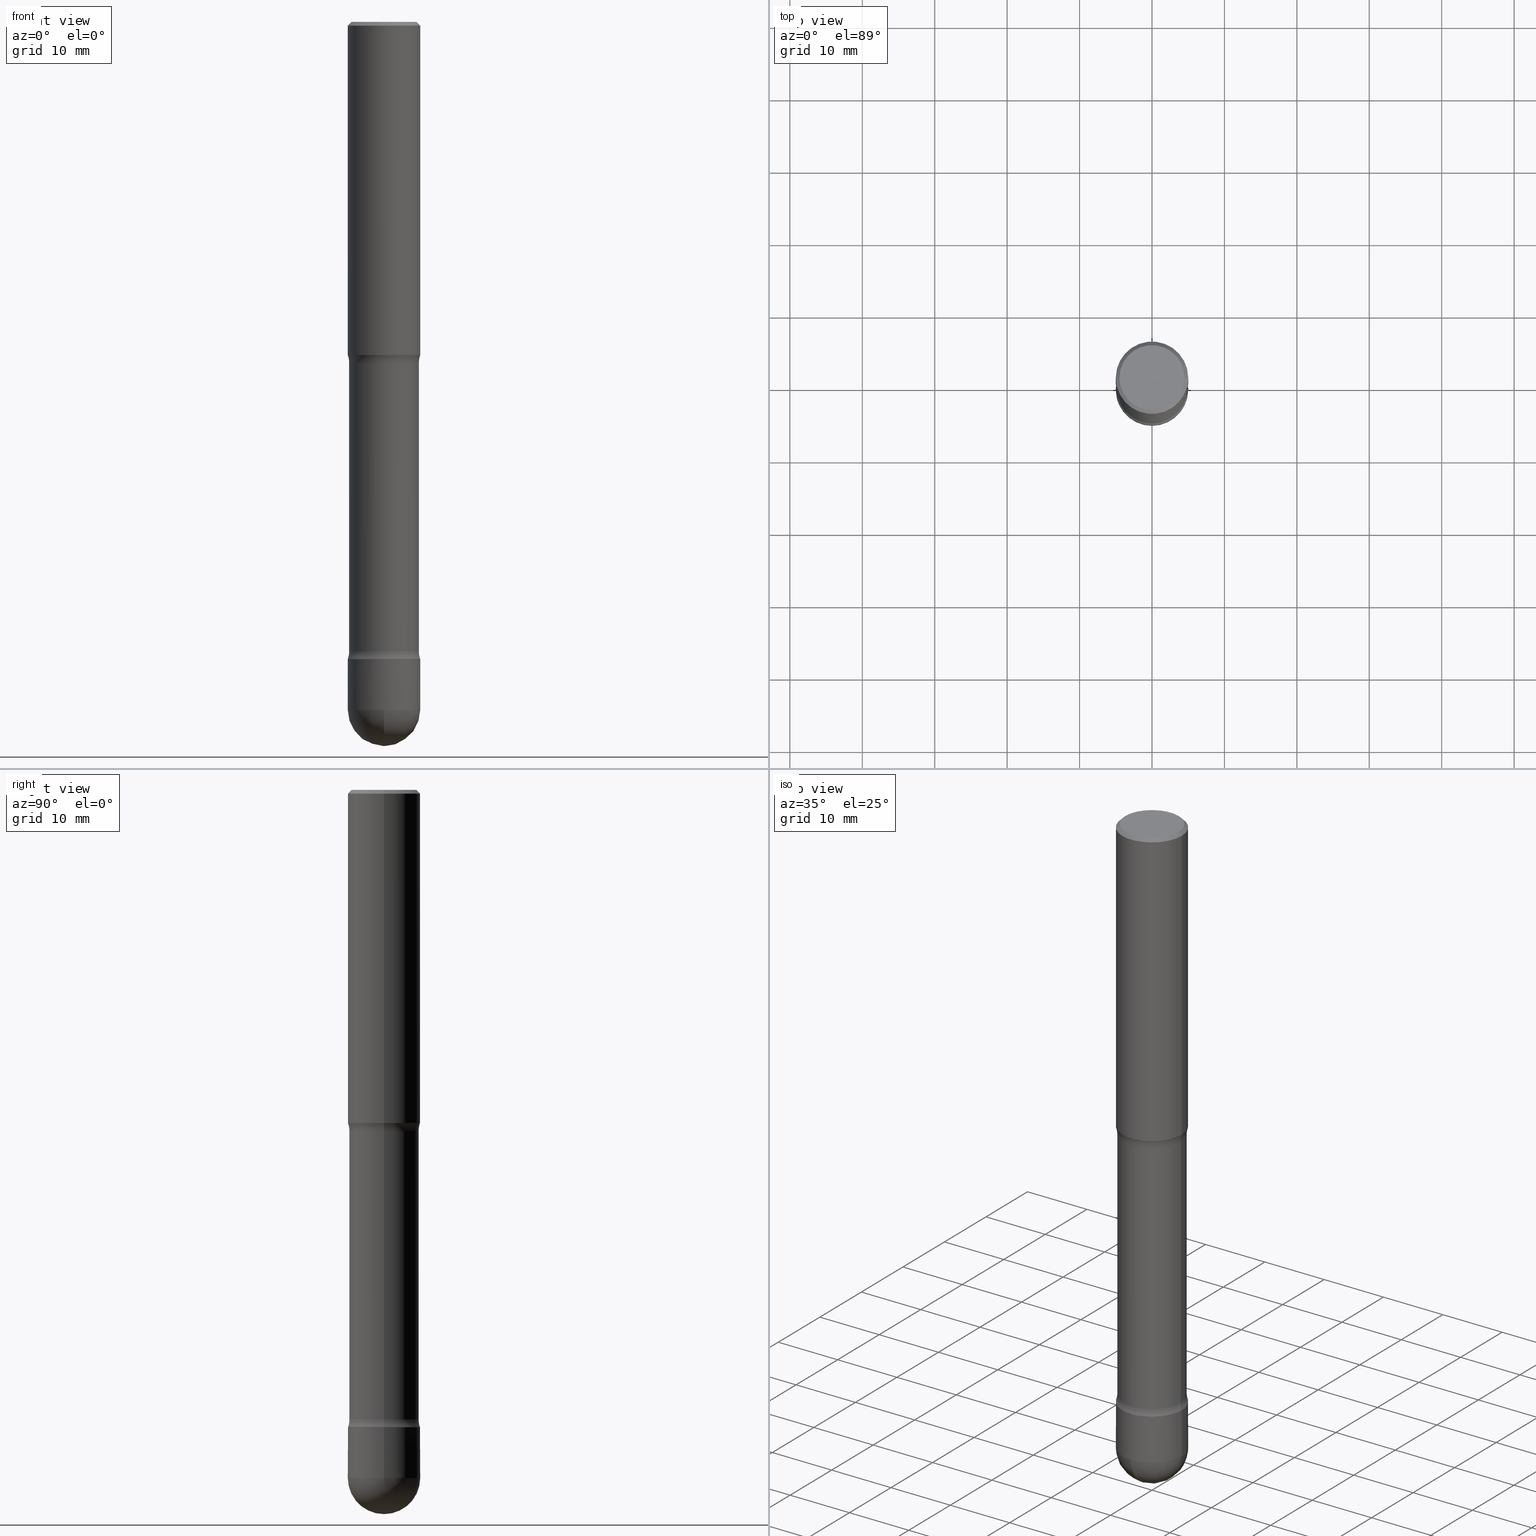
[diagram: canonical four-view strip — front | top / right | iso, engineering-drawing reading convention]
A machine part, canonical four-view strip (front | top / right | iso — engineering-drawing reading convention). The complete STEP part file that produces these views, byte-faithful:
ISO-10303-21;
HEADER;
FILE_DESCRIPTION (( 'STEP AP203' ),
    '1' );
FILE_NAME ('44617.STEP',
    '2024-02-29T19:25:43',
    ( '' ),
    ( '' ),
    'SwSTEP 2.0',
    'SolidWorks 2023',
    '' );
FILE_SCHEMA (( 'CONFIG_CONTROL_DESIGN' ));
ENDSEC;

DATA;
#1 = CARTESIAN_POINT ( 'NONE',  ( 8.368279793930263222E-29, -1.194768572178373665E-14, -3.421953194726923275 ) ) ;
#2 = ORIENTED_EDGE ( 'NONE', *, *, #269, .T. ) ;
#3 = DIRECTION ( 'NONE',  ( 2.445468806185136597E-29, -3.491481338843145583E-15, -1.000000000000000000 ) ) ;
#4 = DIRECTION ( 'NONE',  ( 2.445468806185136597E-29, -3.491481338843145583E-15, -1.000000000000000000 ) ) ;
#5 = ADVANCED_FACE ( 'NONE', ( #546 ), #18, .T. ) ;
#6 = ORIENTED_EDGE ( 'NONE', *, *, #314, .F. ) ;
#7 = LENGTH_MEASURE_WITH_UNIT ( LENGTH_MEASURE( 0.02539999999999999897 ), #405 );
#8 = EDGE_LOOP ( 'NONE', ( #445, #330, #348, #40, #441 ) ) ;
#9 =( NAMED_UNIT ( * ) SI_UNIT ( $, .STERADIAN. ) SOLID_ANGLE_UNIT ( ) );
#10 = VECTOR ( 'NONE', #544, 39.37007874015748143 ) ;
#11 = VECTOR ( 'NONE', #519, 39.37007874015748854 ) ;
#12 = ORIENTED_EDGE ( 'NONE', *, *, #517, .T. ) ;
#13 = VERTEX_POINT ( 'NONE', #506 ) ;
#14 = PLANE ( 'NONE',  #294 ) ;
#15 = DIRECTION ( 'NONE',  ( -2.445468806185136597E-29, 3.491481338843145583E-15, 1.000000000000000000 ) ) ;
#16 = DIRECTION ( 'NONE',  ( 2.445468806185136597E-29, -3.491481338843145583E-15, -1.000000000000000000 ) ) ;
#17 = EDGE_CURVE ( 'NONE', #237, #447, #449, .T. ) ;
#18 = CONICAL_SURFACE ( 'NONE', #94, 0.1968499999999997752, 0.7853981633974533860 ) ;
#19 = AXIS2_PLACEMENT_3D ( 'NONE', #179, #270, #514 ) ;
#20 = DIRECTION ( 'NONE',  ( -1.000000000000000000, 6.982962677686266711E-15, 0.000000000000000000 ) ) ;
#21 = DIRECTION ( 'NONE',  ( 2.445468806185136597E-29, -3.491481338843145583E-15, -1.000000000000000000 ) ) ;
#22 = ORIENTED_EDGE ( 'NONE', *, *, #127, .F. ) ;
#23 = DIRECTION ( 'NONE',  ( 2.445468806185136597E-29, -3.491481338843145583E-15, -1.000000000000000000 ) ) ;
#24 = FACE_OUTER_BOUND ( 'NONE', #121, .T. ) ;
#25 = CARTESIAN_POINT ( 'NONE',  ( 0.000000000000000000, 0.000000000000000000, 0.000000000000000000 ) ) ;
#26 = APPROVAL_ROLE ( '' ) ;
#27 = FACE_OUTER_BOUND ( 'NONE', #136, .T. ) ;
#28 = AXIS2_PLACEMENT_3D ( 'NONE', #509, #61, #413 ) ;
#29 = EDGE_CURVE ( 'NONE', #529, #204, #329, .T. ) ;
#30 = CARTESIAN_POINT ( 'NONE',  ( -0.1963499999999993584, -1.070143558489101000E-14, -3.464599999999999902 ) ) ;
#31 = LINE ( 'NONE', #30, #11 ) ;
#32 = DIRECTION ( 'NONE',  ( 2.445468806185136597E-29, -3.491481338843145583E-15, -1.000000000000000000 ) ) ;
#33 = ADVANCED_FACE ( 'NONE', ( #24 ), #14, .T. ) ;
#34 = AXIS2_PLACEMENT_3D ( 'NONE', #499, #252, #508 ) ;
#35 = EDGE_CURVE ( 'NONE', #561, #377, #142, .T. ) ;
#36 = LOCAL_TIME ( 14, 25, 43.00000000000000000, #530 ) ;
#37 = ORIENTED_EDGE ( 'NONE', *, *, #387, .F. ) ;
#38 = DIRECTION ( 'NONE',  ( -2.445468806185136597E-29, 3.491481338843145583E-15, 1.000000000000000000 ) ) ;
#39 = CARTESIAN_POINT ( 'NONE',  ( 1.398703375343844365E-15, 0.1968499999999863970, -3.740150000000000752 ) ) ;
#40 = ORIENTED_EDGE ( 'NONE', *, *, #517, .F. ) ;
#41 = APPROVAL ( #102, 'UNSPECIFIED' ) ;
#42 = APPROVAL_ROLE ( '' ) ;
#43 = EDGE_LOOP ( 'NONE', ( #89, #380, #282, #12, #79 ) ) ;
#44 = AXIS2_PLACEMENT_3D ( 'NONE', #297, #461, #512 ) ;
#45 = SECURITY_CLASSIFICATION ( '', '', #205 ) ;
#46 = CARTESIAN_POINT ( 'NONE',  ( 1.371104721763778671E-15, 0.1963499999999872847, -3.464600000000000346 ) ) ;
#47 = ORIENTED_EDGE ( 'NONE', *, *, #194, .T. ) ;
#48 = DATE_AND_TIME ( #140, #432 ) ;
#49 = FACE_OUTER_BOUND ( 'NONE', #357, .T. ) ;
#50 = ORIENTED_EDGE ( 'NONE', *, *, #267, .F. ) ;
#51 = PRODUCT ( '44617', '44617', '', ( #283 ) ) ;
#52 = APPLICATION_PROTOCOL_DEFINITION ( 'international standard', 'config_control_design', 1994, #63 ) ;
#53 = EDGE_LOOP ( 'NONE', ( #418, #368, #513, #522 ) ) ;
#54 = APPROVAL_DATE_TIME ( #448, #41 ) ;
#55 = CIRCLE ( 'NONE', #540, 0.1968499999999993033 ) ;
#56 = CIRCLE ( 'NONE', #399, 0.1968499999999995809 ) ;
#57 = CYLINDRICAL_SURFACE ( 'NONE', #425, 0.1893499999999998795 ) ;
#58 = DIRECTION ( 'NONE',  ( -1.000000000000000000, 6.982962677686263555E-15, 0.000000000000000000 ) ) ;
#59 = EDGE_CURVE ( 'NONE', #352, #373, #55, .T. ) ;
#60 = PERSON_AND_ORGANIZATION_ROLE ( 'creator' ) ;
#61 = DIRECTION ( 'NONE',  ( 2.445468806185136597E-29, -3.491481338843145583E-15, -1.000000000000000000 ) ) ;
#62 = FACE_OUTER_BOUND ( 'NONE', #130, .T. ) ;
#63 = APPLICATION_CONTEXT ( 'configuration controlled 3d designs of mechanical parts and assemblies' ) ;
#64 = CIRCLE ( 'NONE', #218, 0.1768499999999997851 ) ;
#65 = CARTESIAN_POINT ( 'NONE',  ( 4.533035439980052208E-29, -6.471973229417174909E-15, -1.853646805273080567 ) ) ;
#66 = EDGE_CURVE ( 'NONE', #561, #396, #452, .T. ) ;
#67 = CIRCLE ( 'NONE', #391, 0.1968499999999999417 ) ;
#68 = DIRECTION ( 'NONE',  ( -1.000000000000000000, 6.982962677686267499E-15, 0.000000000000000000 ) ) ;
#69 = COORDINATED_UNIVERSAL_TIME_OFFSET ( 5, 0, .BEHIND. ) ;
#70 = DIRECTION ( 'NONE',  ( -1.000000000000000000, 6.982962677686265922E-15, -4.876176775795935793E-29 ) ) ;
#71 = DIRECTION ( 'NONE',  ( -2.438088387897960049E-29, 3.491481338843145188E-15, 1.000000000000000000 ) ) ;
#72 = CARTESIAN_POINT ( 'NONE',  ( 8.472571225909024784E-29, -1.209658624655596216E-14, -3.464599999999999902 ) ) ;
#73 = DIRECTION ( 'NONE',  ( 1.000000000000000000, -6.982962677686263555E-15, 0.000000000000000000 ) ) ;
#74 = ORIENTED_EDGE ( 'NONE', *, *, #421, .T. ) ;
#75 = ADVANCED_FACE ( 'NONE', ( #62 ), #326, .T. ) ;
#76 = CARTESIAN_POINT ( 'NONE',  ( 0.3143499999999866401, -1.410428326738312424E-14, -3.421953194726923275 ) ) ;
#77 = AXIS2_PLACEMENT_3D ( 'NONE', #424, #255, #159 ) ;
#78 = AXIS2_PLACEMENT_3D ( 'NONE', #555, #88, #264 ) ;
#79 = ORIENTED_EDGE ( 'NONE', *, *, #492, .F. ) ;
#80 = CARTESIAN_POINT ( 'NONE',  ( 8.472571225909024784E-29, -1.209658624655596216E-14, -3.464599999999999902 ) ) ;
#81 = CARTESIAN_POINT ( 'NONE',  ( 4.533035439980052208E-29, -6.471973229417174909E-15, -1.853646805273080567 ) ) ;
#82 = DIRECTION ( 'NONE',  ( 2.445468806185136597E-29, -3.491481338843145583E-15, -1.000000000000000000 ) ) ;
#83 = APPLICATION_CONTEXT ( 'configuration controlled 3d designs of mechanical parts and assemblies' ) ;
#84 = CIRCLE ( 'NONE', #389, 0.1893499999999997130 ) ;
#85 = DIRECTION ( 'NONE',  ( 1.000000000000000000, -6.982962677686273810E-15, 0.000000000000000000 ) ) ;
#86 = EDGE_CURVE ( 'NONE', #381, #384, #211, .T. ) ;
#87 = ORIENTED_EDGE ( 'NONE', *, *, #17, .T. ) ;
#88 = DIRECTION ( 'NONE',  ( -2.445468806185136597E-29, 3.491481338843145583E-15, 1.000000000000000000 ) ) ;
#89 = ORIENTED_EDGE ( 'NONE', *, *, #66, .F. ) ;
#90 = ADVANCED_FACE ( 'NONE', ( #415 ), #57, .T. ) ;
#91 = APPROVAL_ROLE ( '' ) ;
#92 = PLANE ( 'NONE',  #565 ) ;
#93 = EDGE_LOOP ( 'NONE', ( #222, #437, #240, #478 ) ) ;
#94 = AXIS2_PLACEMENT_3D ( 'NONE', #111, #154, #20 ) ;
#95 = VECTOR ( 'NONE', #99, 39.37007874015748143 ) ;
#96 = CARTESIAN_POINT ( 'NONE',  ( 0.1968499999999999417, -4.546940196572229414E-15, -1.811000000000002830 ) ) ;
#97 = DIRECTION ( 'NONE',  ( 2.438088387897960049E-29, -3.491481338843145188E-15, -1.000000000000000000 ) ) ;
#98 = ORIENTED_EDGE ( 'NONE', *, *, #86, .T. ) ;
#99 = DIRECTION ( 'NONE',  ( -2.445468806185136877E-29, 3.491481338843145188E-15, 1.000000000000000000 ) ) ;
#100 = ADVANCED_FACE ( 'NONE', ( #318 ), #92, .T. ) ;
#101 = ORIENTED_EDGE ( 'NONE', *, *, #291, .F. ) ;
#102 = APPROVAL_STATUS ( 'not_yet_approved' ) ;
#103 = DIRECTION ( 'NONE',  ( 0.000000000000000000, 0.000000000000000000, 1.000000000000000000 ) ) ;
#104 = CIRCLE ( 'NONE', #151, 0.1968499999999997752 ) ;
#105 = AXIS2_PLACEMENT_3D ( 'NONE', #310, #468, #395 ) ;
#106 = ADVANCED_FACE ( 'NONE', ( #49 ), #132, .F. ) ;
#107 = CARTESIAN_POINT ( 'NONE',  ( -0.1968499999999998307, -1.072199004345342213E-14, -3.464599999999999902 ) ) ;
#108 = EDGE_LOOP ( 'NONE', ( #191, #37, #388, #220 ) ) ;
#109 = PERSON_AND_ORGANIZATION ( #323, #450 ) ;
#110 = CARTESIAN_POINT ( 'NONE',  ( 0.000000000000000000, 0.000000000000000000, 0.000000000000000000 ) ) ;
#111 = CARTESIAN_POINT ( 'NONE',  ( 4.890937612370220610E-31, -6.982962677686216421E-17, -0.01999999999999978531 ) ) ;
#112 = ORIENTED_EDGE ( 'NONE', *, *, #229, .T. ) ;
#113 = CARTESIAN_POINT ( 'NONE',  ( 8.368279793930256495E-29, -1.194768572178372876E-14, -3.421953194726920611 ) ) ;
#114 = CARTESIAN_POINT ( 'NONE',  ( 0.1968499999999997752, -1.420318657638186558E-15, -0.01999999999999978531 ) ) ;
#115 = CARTESIAN_POINT ( 'NONE',  ( 9.146420155453339430E-29, -1.305866392947419182E-14, -3.740150000000000308 ) ) ;
#116 = EDGE_LOOP ( 'NONE', ( #6, #226, #465, #542 ) ) ;
#117 = AXIS2_PLACEMENT_3D ( 'NONE', #245, #493, #157 ) ;
#118 = DIRECTION ( 'NONE',  ( 7.105427357600999492E-15, 1.000000000000000000, 0.000000000000000000 ) ) ;
#119 = VECTOR ( 'NONE', #181, 39.37007874015748854 ) ;
#120 = CARTESIAN_POINT ( 'NONE',  ( 8.472571225909024784E-29, -1.209658624655596216E-14, -3.464599999999999902 ) ) ;
#121 = EDGE_LOOP ( 'NONE', ( #374, #498 ) ) ;
#122 = CARTESIAN_POINT ( 'NONE',  ( 0.1968499999999998307, -1.344707527741728837E-14, -3.464599999999999902 ) ) ;
#123 = EDGE_LOOP ( 'NONE', ( #242, #460, #558, #436 ) ) ;
#124 = SPHERICAL_SURFACE ( 'NONE', #566, 0.1968499999999995809 ) ;
#125 = CIRCLE ( 'NONE', #439, 0.1968499999999999417 ) ;
#126 = CIRCLE ( 'NONE', #248, 0.1968499999999993588 ) ;
#127 = EDGE_CURVE ( 'NONE', #526, #510, #491, .T. ) ;
#128 = FACE_OUTER_BOUND ( 'NONE', #167, .T. ) ;
#129 = LINE ( 'NONE', #172, #119 ) ;
#130 = EDGE_LOOP ( 'NONE', ( #214, #287, #484, #364 ) ) ;
#131 = CARTESIAN_POINT ( 'NONE',  ( 8.368279793930263222E-29, -1.194768572178373665E-14, -3.421953194726923275 ) ) ;
#132 = TOROIDAL_SURFACE ( 'NONE', #303, 0.3143499999999866401, 0.1249999999999867467 ) ;
#133 = CIRCLE ( 'NONE', #559, 0.1249999999999867467 ) ;
#134 = ORIENTED_EDGE ( 'NONE', *, *, #17, .F. ) ;
#135 = DIRECTION ( 'NONE',  ( -6.982962677686266711E-15, -1.000000000000000000, 0.000000000000000000 ) ) ;
#136 = EDGE_LOOP ( 'NONE', ( #47, #507 ) ) ;
#137 = COORDINATED_UNIVERSAL_TIME_OFFSET ( 5, 0, .BEHIND. ) ;
#138 = DIRECTION ( 'NONE',  ( -1.000000000000000000, 6.982962677686266711E-15, 0.000000000000000000 ) ) ;
#139 = ORIENTED_EDGE ( 'NONE', *, *, #262, .F. ) ;
#140 = CALENDAR_DATE ( 2024, 29, 2 ) ;
#141 = CARTESIAN_POINT ( 'NONE',  ( 4.890937612370220610E-31, -6.982962677686216421E-17, -0.01999999999999978531 ) ) ;
#142 = CIRCLE ( 'NONE', #311, 0.1968499999999993033 ) ;
#143 = ADVANCED_FACE ( 'NONE', ( #275 ), #336, .T. ) ;
#144 = FACE_OUTER_BOUND ( 'NONE', #43, .T. ) ;
#145 = EDGE_CURVE ( 'NONE', #515, #381, #186, .T. ) ;
#146 = ORIENTED_EDGE ( 'NONE', *, *, #35, .F. ) ;
#147 = CARTESIAN_POINT ( 'NONE',  ( 0.000000000000000000, 0.000000000000000000, 0.000000000000000000 ) ) ;
#148 = CARTESIAN_POINT ( 'NONE',  ( -0.1968499999999993033, -1.117892171267132551E-14, -3.740150000000000308 ) ) ;
#149 = VERTEX_POINT ( 'NONE', #232 ) ;
#150 = DIRECTION ( 'NONE',  ( 1.000000000000000000, -6.982962677686268288E-15, 0.000000000000000000 ) ) ;
#151 = AXIS2_PLACEMENT_3D ( 'NONE', #286, #503, #200 ) ;
#152 = DIRECTION ( 'NONE',  ( -2.445468806185136597E-29, 3.491481338843145583E-15, 1.000000000000000000 ) ) ;
#153 = ADVANCED_FACE ( 'NONE', ( #315 ), #185, .T. ) ;
#154 = DIRECTION ( 'NONE',  ( 2.445468806185136597E-29, -3.491481338843145583E-15, -1.000000000000000000 ) ) ;
#155 = DATE_AND_TIME ( #365, #238 ) ;
#156 = FACE_OUTER_BOUND ( 'NONE', #108, .T. ) ;
#157 = DIRECTION ( 'NONE',  ( -6.982962677686266711E-15, -1.000000000000000000, 2.775563112689123006E-15 ) ) ;
#158 = DIRECTION ( 'NONE',  ( 6.860497997771531562E-15, 1.000000000000000000, -3.491481338843145583E-15 ) ) ;
#159 = DIRECTION ( 'NONE',  ( -1.000000000000000000, 6.982962677686269866E-15, 0.000000000000000000 ) ) ;
#160 = APPROVAL ( #477, 'UNSPECIFIED' ) ;
#161 = DATE_AND_TIME ( #412, #312 ) ;
#162 = MANIFOLD_SOLID_BREP ( 'Body-Move/Copy2[2]', #259 ) ;
#163 = VECTOR ( 'NONE', #379, 39.37007874015748143 ) ;
#164 = EDGE_CURVE ( 'NONE', #13, #204, #190, .T. ) ;
#165 = DIRECTION ( 'NONE',  ( 2.445468806185136597E-29, -3.491481338843145583E-15, -1.000000000000000000 ) ) ;
#166 = AXIS2_PLACEMENT_3D ( 'NONE', #189, #488, #403 ) ;
#167 = EDGE_LOOP ( 'NONE', ( #50, #112, #316, #251 ) ) ;
#168 = ORIENTED_EDGE ( 'NONE', *, *, #339, .F. ) ;
#169 = PERSON_AND_ORGANIZATION ( #323, #450 ) ;
#170 = CARTESIAN_POINT ( 'NONE',  ( 4.533035439980052208E-29, -6.471973229417174909E-15, -1.853646805273080567 ) ) ;
#171 = VERTEX_POINT ( 'NONE', #537 ) ;
#172 = CARTESIAN_POINT ( 'NONE',  ( 0.1963499999999993584, -1.346769096831965602E-14, -3.464599999999999902 ) ) ;
#173 = CC_DESIGN_PERSON_AND_ORGANIZATION_ASSIGNMENT ( #442, #274, ( #51 ) ) ;
#174 = ORIENTED_EDGE ( 'NONE', *, *, #387, .T. ) ;
#175 = CARTESIAN_POINT ( 'NONE',  ( -1.374596203102446353E-15, -0.1968500000000124872, -3.740149999999999864 ) ) ;
#176 = AXIS2_PLACEMENT_3D ( 'NONE', #170, #371, #454 ) ;
#177 = AXIS2_PLACEMENT_3D ( 'NONE', #345, #429, #435 ) ;
#178 = EDGE_CURVE ( 'NONE', #529, #384, #284, .T. ) ;
#179 = CARTESIAN_POINT ( 'NONE',  ( 8.472571225909024784E-29, -1.209658624655596216E-14, -3.464599999999999902 ) ) ;
#180 = CYLINDRICAL_SURFACE ( 'NONE', #327, 0.1968499999999998307 ) ;
#181 = DIRECTION ( 'NONE',  ( 0.7071067811865145991, -2.468850131081912723E-15, 0.7071067811865802133 ) ) ;
#182 = EDGE_CURVE ( 'NONE', #204, #13, #84, .T. ) ;
#183 = ORIENTED_EDGE ( 'NONE', *, *, #182, .T. ) ;
#184 = CARTESIAN_POINT ( 'NONE',  ( 0.1968499999999993588, -1.347118244965850061E-14, -3.464599999999999902 ) ) ;
#185 = CYLINDRICAL_SURFACE ( 'NONE', #523, 0.1968499999999993311 ) ;
#186 = LINE ( 'NONE', #483, #367 ) ;
#187 = EDGE_CURVE ( 'NONE', #321, #381, #104, .T. ) ;
#188 = EDGE_CURVE ( 'NONE', #149, #373, #504, .T. ) ;
#189 = CARTESIAN_POINT ( 'NONE',  ( 0.000000000000000000, 0.000000000000000000, 0.000000000000000000 ) ) ;
#190 = CIRCLE ( 'NONE', #34, 0.1893499999999997130 ) ;
#191 = ORIENTED_EDGE ( 'NONE', *, *, #443, .F. ) ;
#192 = AXIS2_PLACEMENT_3D ( 'NONE', #215, #38, #431 ) ;
#193 = EDGE_LOOP ( 'NONE', ( #101, #2, #341, #475 ) ) ;
#194 = EDGE_CURVE ( 'NONE', #520, #396, #467, .T. ) ;
#195 = DIRECTION ( 'NONE',  ( -1.000000000000000000, 6.982962677686266711E-15, -4.876176775795935793E-29 ) ) ;
#196 = ADVANCED_FACE ( 'NONE', ( #27 ), #456, .F. ) ;
#197 = DIRECTION ( 'NONE',  ( 2.445468806185136597E-29, -3.491481338843145583E-15, -1.000000000000000000 ) ) ;
#198 = CLOSED_SHELL ( 'NONE', ( #153, #75, #466, #554, #196 ) ) ;
#199 = CONICAL_SURFACE ( 'NONE', #440, 0.1963499999999993584, 0.7853981633974018717 ) ;
#200 = DIRECTION ( 'NONE',  ( -1.000000000000000000, 6.982962677686266711E-15, 0.000000000000000000 ) ) ;
#201 = EDGE_LOOP ( 'NONE', ( #230, #385, #98, #271 ) ) ;
#202 = DIRECTION ( 'NONE',  ( 2.445468806185136597E-29, -3.491481338843145583E-15, -1.000000000000000000 ) ) ;
#203 = PRODUCT_RELATED_PRODUCT_CATEGORY ( 'detail', '', ( #51 ) ) ;
#204 = VERTEX_POINT ( 'NONE', #383 ) ;
#205 = SECURITY_CLASSIFICATION_LEVEL ( 'unclassified' ) ;
#206 = CARTESIAN_POINT ( 'NONE',  ( -0.1967173271255958644, -1.072163397737945290E-14, -3.464232672874403285 ) ) ;
#207 = DIRECTION ( 'NONE',  ( 1.000000000000000000, -6.982962677686265922E-15, 4.876176775795935793E-29 ) ) ;
#208 = AXIS2_PLACEMENT_3D ( 'NONE', #141, #4, #138 ) ;
#209 = DIRECTION ( 'NONE',  ( -1.000000000000000000, 6.982962677686266711E-15, 0.000000000000000000 ) ) ;
#210 = CC_DESIGN_APPROVAL ( #451, ( #45 ) ) ;
#211 = LINE ( 'NONE', #107, #398 ) ;
#212 = CC_DESIGN_DATE_AND_TIME_ASSIGNMENT ( #48, #490, ( #307 ) ) ;
#213 = FACE_OUTER_BOUND ( 'NONE', #402, .T. ) ;
#214 = ORIENTED_EDGE ( 'NONE', *, *, #421, .F. ) ;
#215 = CARTESIAN_POINT ( 'NONE',  ( 8.472571225909024784E-29, -1.209658624655596216E-14, -3.464599999999999902 ) ) ;
#216 = EDGE_LOOP ( 'NONE', ( #369, #168, #335, #434 ) ) ;
#217 = CARTESIAN_POINT ( 'NONE',  ( 9.129586207050842305E-29, -1.308277110171540879E-14, -3.740150000000000308 ) ) ;
#218 = AXIS2_PLACEMENT_3D ( 'NONE', #110, #16, #195 ) ;
#219 = AXIS2_PLACEMENT_3D ( 'NONE', #147, #103, #322 ) ;
#220 = ORIENTED_EDGE ( 'NONE', *, *, #291, .T. ) ;
#221 = DIRECTION ( 'NONE',  ( -1.000000000000000000, 6.982962677686266711E-15, -4.883557194083112901E-29 ) ) ;
#222 = ORIENTED_EDGE ( 'NONE', *, *, #339, .T. ) ;
#223 = PERSON_AND_ORGANIZATION_ROLE ( 'creator' ) ;
#224 = DIRECTION ( 'NONE',  ( -1.000000000000000000, 6.982962677686264344E-15, 0.000000000000000000 ) ) ;
#225 =( GEOMETRIC_REPRESENTATION_CONTEXT ( 3 ) GLOBAL_UNCERTAINTY_ASSIGNED_CONTEXT ( ( #359 ) ) GLOBAL_UNIT_ASSIGNED_CONTEXT ( ( #438, #320, #9 ) ) REPRESENTATION_CONTEXT ( 'NONE', 'WORKASPACE' ) );
#226 = ORIENTED_EDGE ( 'NONE', *, *, #279, .T. ) ;
#227 = CARTESIAN_POINT ( 'NONE',  ( -0.1893500000000000461, -5.149749246397279985E-15, -1.853646805273080567 ) ) ;
#228 = ADVANCED_FACE ( 'NONE', ( #254 ), #406, .F. ) ;
#229 = EDGE_CURVE ( 'NONE', #302, #529, #414, .T. ) ;
#230 = ORIENTED_EDGE ( 'NONE', *, *, #258, .F. ) ;
#231 = CALENDAR_DATE ( 2024, 29, 2 ) ;
#232 = CARTESIAN_POINT ( 'NONE',  ( 9.602559767347136862E-29, -1.378212278938728887E-14, -3.937000000000000277 ) ) ;
#233 = ORIENTED_EDGE ( 'NONE', *, *, #269, .F. ) ;
#234 = PERSON_AND_ORGANIZATION ( #323, #450 ) ;
#235 = EDGE_CURVE ( 'NONE', #381, #321, #266, .T. ) ;
#236 = AXIS2_PLACEMENT_3D ( 'NONE', #366, #165, #340 ) ;
#237 = VERTEX_POINT ( 'NONE', #206 ) ;
#238 = LOCAL_TIME ( 14, 25, 43.00000000000000000, #453 ) ;
#239 = DIRECTION ( 'NONE',  ( -1.000000000000000000, 6.982962677686265922E-15, 0.000000000000000000 ) ) ;
#240 = ORIENTED_EDGE ( 'NONE', *, *, #182, .F. ) ;
#241 = DATE_TIME_ROLE ( 'classification_date' ) ;
#242 = ORIENTED_EDGE ( 'NONE', *, *, #229, .F. ) ;
#243 = PERSON_AND_ORGANIZATION_ROLE ( 'design_supplier' ) ;
#244 = DIRECTION ( 'NONE',  ( 1.000000000000000000, -7.105427357601001070E-15, 4.926315508542082329E-29 ) ) ;
#245 = CARTESIAN_POINT ( 'NONE',  ( 9.129586207050842305E-29, -1.308277110171540879E-14, -3.740150000000000308 ) ) ;
#246 = DIRECTION ( 'NONE',  ( -6.982962677686266711E-15, -1.000000000000000000, 3.491481338843145583E-15 ) ) ;
#247 = AXIS2_PLACEMENT_3D ( 'NONE', #496, #152, #301 ) ;
#248 = AXIS2_PLACEMENT_3D ( 'NONE', #80, #470, #353 ) ;
#249 = DIRECTION ( 'NONE',  ( -1.000000000000000000, 6.982962677686265922E-15, 0.000000000000000000 ) ) ;
#250 = EDGE_CURVE ( 'NONE', #547, #384, #125, .T. ) ;
#251 = ORIENTED_EDGE ( 'NONE', *, *, #164, .F. ) ;
#252 = DIRECTION ( 'NONE',  ( 2.445468806185136597E-29, -3.491481338843145583E-15, -1.000000000000000000 ) ) ;
#253 = SHAPE_DEFINITION_REPRESENTATION ( #394, #295 ) ;
#254 = FACE_OUTER_BOUND ( 'NONE', #216, .T. ) ;
#255 = DIRECTION ( 'NONE',  ( 2.445468806185136597E-29, -3.491481338843145583E-15, -1.000000000000000000 ) ) ;
#256 = DIRECTION ( 'NONE',  ( -1.000000000000000000, 6.982962677686266711E-15, -4.883557194083112901E-29 ) ) ;
#257 = CARTESIAN_POINT ( 'NONE',  ( 9.146420155453339430E-29, -1.305866392947419182E-14, -3.740150000000000308 ) ) ;
#258 = EDGE_CURVE ( 'NONE', #321, #547, #539, .T. ) ;
#259 = CLOSED_SHELL ( 'NONE', ( #462, #363, #90, #349, #393, #143, #5, #404, #228, #469, #106, #299, #100, #33 ) ) ;
#260 = DIRECTION ( 'NONE',  ( 6.860497997771531562E-15, 1.000000000000000000, -3.491481338843145583E-15 ) ) ;
#261 = CIRCLE ( 'NONE', #78, 0.1968499999999993033 ) ;
#262 = EDGE_CURVE ( 'NONE', #373, #561, #516, .T. ) ;
#263 = DIRECTION ( 'NONE',  ( -6.982962677686266711E-15, -1.000000000000000000, 2.775563112689123006E-15 ) ) ;
#264 = DIRECTION ( 'NONE',  ( 1.000000000000000000, -6.982962677686263555E-15, 0.000000000000000000 ) ) ;
#265 = CARTESIAN_POINT ( 'NONE',  ( -0.3143499999999866401, -9.752591404053151476E-15, -3.421953194726923275 ) ) ;
#266 = CIRCLE ( 'NONE', #481, 0.1968499999999997752 ) ;
#267 = EDGE_CURVE ( 'NONE', #302, #13, #543, .T. ) ;
#268 = TOROIDAL_SURFACE ( 'NONE', #356, 0.3143499999999866401, 0.1249999999999867467 ) ;
#269 = EDGE_CURVE ( 'NONE', #447, #13, #557, .T. ) ;
#270 = DIRECTION ( 'NONE',  ( 2.445468806185136597E-29, -3.491481338843145583E-15, -1.000000000000000000 ) ) ;
#271 = ORIENTED_EDGE ( 'NONE', *, *, #250, .F. ) ;
#272 = DIRECTION ( 'NONE',  ( -1.000000000000000000, 6.982962677686264344E-15, 0.000000000000000000 ) ) ;
#273 = ORIENTED_EDGE ( 'NONE', *, *, #382, .F. ) ;
#274 = PERSON_AND_ORGANIZATION_ROLE ( 'design_owner' ) ;
#275 = FACE_OUTER_BOUND ( 'NONE', #532, .T. ) ;
#276 = AXIS2_PLACEMENT_3D ( 'NONE', #289, #244, #118 ) ;
#277 = CIRCLE ( 'NONE', #482, 0.1249999999999882871 ) ;
#278 = ORIENTED_EDGE ( 'NONE', *, *, #145, .F. ) ;
#279 = EDGE_CURVE ( 'NONE', #171, #515, #64, .T. ) ;
#280 = DIRECTION ( 'NONE',  ( -1.000000000000000000, 6.982962677686265922E-15, -4.876176775795935793E-29 ) ) ;
#281 = CARTESIAN_POINT ( 'NONE',  ( 4.428744008001289525E-29, -6.323072704644947039E-15, -1.811000000000002830 ) ) ;
#282 = ORIENTED_EDGE ( 'NONE', *, *, #372, .T. ) ;
#283 = MECHANICAL_CONTEXT ( 'NONE', #63, 'mechanical' ) ;
#284 = CIRCLE ( 'NONE', #325, 0.1249999999999882871 ) ;
#285 = EDGE_CURVE ( 'NONE', #515, #171, #361, .T. ) ;
#286 = CARTESIAN_POINT ( 'NONE',  ( 4.890937612370220610E-31, -6.982962677686216421E-17, -0.01999999999999978531 ) ) ;
#287 = ORIENTED_EDGE ( 'NONE', *, *, #188, .T. ) ;
#288 = DATE_AND_TIME ( #422, #370 ) ;
#289 = CARTESIAN_POINT ( 'NONE',  ( 9.129586207050842305E-29, -1.308277110171540879E-14, -3.740150000000000308 ) ) ;
#290 = DIRECTION ( 'NONE',  ( 1.000000000000000000, -6.982962677686263555E-15, 0.000000000000000000 ) ) ;
#291 = EDGE_CURVE ( 'NONE', #447, #237, #505, .T. ) ;
#292 = CARTESIAN_POINT ( 'NONE',  ( 4.533035439980052208E-29, -6.471973229417174909E-15, -1.853646805273080567 ) ) ;
#293 = DIRECTION ( 'NONE',  ( 2.445468806185136877E-29, -3.491481338843145188E-15, -1.000000000000000000 ) ) ;
#294 = AXIS2_PLACEMENT_3D ( 'NONE', #300, #71, #207 ) ;
#295 = ADVANCED_BREP_SHAPE_REPRESENTATION ( '44617', ( #351, #162, #219 ), #225 ) ;
#296 = APPROVAL_PERSON_ORGANIZATION ( #234, #41, #42 ) ;
#297 = CARTESIAN_POINT ( 'NONE',  ( 8.472571225909024784E-29, -1.209658624655596216E-14, -3.464599999999999902 ) ) ;
#298 = DIRECTION ( 'NONE',  ( 0.7071067811865511255, -7.319954787623268667E-15, -0.7071067811865439090 ) ) ;
#299 = ADVANCED_FACE ( 'NONE', ( #156 ), #199, .T. ) ;
#300 = CARTESIAN_POINT ( 'NONE',  ( 1.234936949548814617E-15, 0.1768499999999997851, -6.153342185293593634E-16 ) ) ;
#301 = DIRECTION ( 'NONE',  ( 1.000000000000000000, -6.982962677686263555E-15, 0.000000000000000000 ) ) ;
#302 = VERTEX_POINT ( 'NONE', #500 ) ;
#303 = AXIS2_PLACEMENT_3D ( 'NONE', #1, #401, #527 ) ;
#304 = DIRECTION ( 'NONE',  ( 1.000000000000000000, -6.982962677686266711E-15, 4.883557194083113462E-29 ) ) ;
#305 = CC_DESIGN_APPROVAL ( #160, ( #541 ) ) ;
#306 = CYLINDRICAL_SURFACE ( 'NONE', #19, 0.1893499999999998795 ) ;
#307 = PRODUCT_DEFINITION ( 'UNKNOWN', '', #541, #487 ) ;
#308 = CARTESIAN_POINT ( 'NONE',  ( -0.1968499999999993588, -1.117892171267132393E-14, -3.464599999999999902 ) ) ;
#309 = EDGE_LOOP ( 'NONE', ( #22, #550, #87, #273 ) ) ;
#310 = CARTESIAN_POINT ( 'NONE',  ( 8.472571225909024784E-29, -1.209658624655596216E-14, -3.464599999999999902 ) ) ;
#311 = AXIS2_PLACEMENT_3D ( 'NONE', #115, #497, #73 ) ;
#312 = LOCAL_TIME ( 14, 25, 43.00000000000000000, #538 ) ;
#313 = FACE_OUTER_BOUND ( 'NONE', #123, .T. ) ;
#314 = EDGE_CURVE ( 'NONE', #171, #321, #334, .T. ) ;
#315 = FACE_OUTER_BOUND ( 'NONE', #8, .T. ) ;
#316 = ORIENTED_EDGE ( 'NONE', *, *, #29, .T. ) ;
#317 = AXIS2_PLACEMENT_3D ( 'NONE', #72, #423, #70 ) ;
#318 = FACE_OUTER_BOUND ( 'NONE', #430, .T. ) ;
#319 = CIRCLE ( 'NONE', #426, 0.1893500000000000461 ) ;
#320 =( NAMED_UNIT ( * ) PLANE_ANGLE_UNIT ( ) SI_UNIT ( $, .RADIAN. ) );
#321 = VERTEX_POINT ( 'NONE', #464 ) ;
#322 = DIRECTION ( 'NONE',  ( 1.000000000000000000, 0.000000000000000000, 0.000000000000000000 ) ) ;
#323 = PERSON ( 'UNSPECIFIED', 'UNSPECIFIED', 'UNSPECIFIED', ('UNSPECIFIED'), ('UNSPECIFIED'), ('UNSPECIFIED') ) ;
#324 = ORIENTED_EDGE ( 'NONE', *, *, #235, .F. ) ;
#325 = AXIS2_PLACEMENT_3D ( 'NONE', #419, #246, #150 ) ;
#326 = SPHERICAL_SURFACE ( 'NONE', #117, 0.1968499999999995809 ) ;
#327 = AXIS2_PLACEMENT_3D ( 'NONE', #471, #82, #272 ) ;
#328 = CARTESIAN_POINT ( 'NONE',  ( 0.1893499999999998795, -1.339562154243400138E-14, -3.464599999999999902 ) ) ;
#329 = LINE ( 'NONE', #463, #10 ) ;
#330 = ORIENTED_EDGE ( 'NONE', *, *, #66, .T. ) ;
#331 = APPROVAL_DATE_TIME ( #161, #451 ) ;
#332 = DIRECTION ( 'NONE',  ( -2.445468806185136597E-29, 3.491481338843145583E-15, 1.000000000000000000 ) ) ;
#333 = DIRECTION ( 'NONE',  ( -2.445468806185136597E-29, 3.491481338843145583E-15, 1.000000000000000000 ) ) ;
#334 = LINE ( 'NONE', #114, #416 ) ;
#335 = ORIENTED_EDGE ( 'NONE', *, *, #178, .T. ) ;
#336 = CONICAL_SURFACE ( 'NONE', #208, 0.1968499999999997752, 0.7853981633974533860 ) ;
#337 = DIRECTION ( 'NONE',  ( 1.000000000000000000, -6.982962677686266711E-15, 4.876176775795935793E-29 ) ) ;
#338 = TOROIDAL_SURFACE ( 'NONE', #407, 0.3143499999999883610, 0.1249999999999883010 ) ;
#339 = EDGE_CURVE ( 'NONE', #529, #302, #319, .T. ) ;
#340 = DIRECTION ( 'NONE',  ( -1.000000000000000000, 6.982962677686266711E-15, -4.876176775795935793E-29 ) ) ;
#341 = ORIENTED_EDGE ( 'NONE', *, *, #164, .T. ) ;
#342 = DIRECTION ( 'NONE',  ( 2.445468806185136597E-29, -3.491481338843145583E-15, -1.000000000000000000 ) ) ;
#343 = EDGE_CURVE ( 'NONE', #302, #547, #277, .T. ) ;
#344 = ORIENTED_EDGE ( 'NONE', *, *, #409, .T. ) ;
#345 = CARTESIAN_POINT ( 'NONE',  ( 8.472571225909024784E-29, -1.209658624655596216E-14, -3.464599999999999902 ) ) ;
#346 = CARTESIAN_POINT ( 'NONE',  ( -0.1968499999999997752, 1.304766576325677916E-15, -0.01999999999999978531 ) ) ;
#347 = CONICAL_SURFACE ( 'NONE', #192, 0.1963499999999993584, 0.7853981633974018717 ) ;
#348 = ORIENTED_EDGE ( 'NONE', *, *, #194, .F. ) ;
#349 = ADVANCED_FACE ( 'NONE', ( #313 ), #338, .F. ) ;
#350 = FACE_OUTER_BOUND ( 'NONE', #201, .T. ) ;
#351 = MANIFOLD_SOLID_BREP ( 'Body-Move/Copy2[1]', #198 ) ;
#352 = VERTEX_POINT ( 'NONE', #564 ) ;
#353 = DIRECTION ( 'NONE',  ( 1.000000000000000000, -6.982962677686271444E-15, 0.000000000000000000 ) ) ;
#354 = CARTESIAN_POINT ( 'NONE',  ( -0.1968499999999999417, -4.948476501542405431E-15, -1.811000000000002830 ) ) ;
#355 = AXIS2_PLACEMENT_3D ( 'NONE', #531, #358, #224 ) ;
#356 = AXIS2_PLACEMENT_3D ( 'NONE', #131, #563, #476 ) ;
#357 = EDGE_LOOP ( 'NONE', ( #233, #134, #344, #183 ) ) ;
#358 = DIRECTION ( 'NONE',  ( 2.445468806185136597E-29, -3.491481338843145583E-15, -1.000000000000000000 ) ) ;
#359 = UNCERTAINTY_MEASURE_WITH_UNIT (LENGTH_MEASURE( 1.000000000000000082E-05 ), #438, 'distance_accuracy_value', 'NONE');
#360 = APPLICATION_PROTOCOL_DEFINITION ( 'international standard', 'config_control_design', 1994, #83 ) ;
#361 = CIRCLE ( 'NONE', #236, 0.1768499999999997851 ) ;
#362 = CC_DESIGN_APPROVAL ( #41, ( #307 ) ) ;
#363 = ADVANCED_FACE ( 'NONE', ( #392 ), #268, .F. ) ;
#364 = ORIENTED_EDGE ( 'NONE', *, *, #372, .F. ) ;
#365 = CALENDAR_DATE ( 2024, 29, 2 ) ;
#366 = CARTESIAN_POINT ( 'NONE',  ( 0.000000000000000000, 0.000000000000000000, 0.000000000000000000 ) ) ;
#367 = VECTOR ( 'NONE', #444, 39.37007874015748143 ) ;
#368 = ORIENTED_EDGE ( 'NONE', *, *, #258, .T. ) ;
#369 = ORIENTED_EDGE ( 'NONE', *, *, #343, .F. ) ;
#370 = LOCAL_TIME ( 14, 25, 43.00000000000000000, #69 ) ;
#371 = DIRECTION ( 'NONE',  ( 2.445468806185136597E-29, -3.491481338843145583E-15, -1.000000000000000000 ) ) ;
#372 = EDGE_CURVE ( 'NONE', #377, #352, #261, .T. ) ;
#373 = VERTEX_POINT ( 'NONE', #39 ) ;
#374 = ORIENTED_EDGE ( 'NONE', *, *, #285, .F. ) ;
#375 = PERSON_AND_ORGANIZATION ( #323, #450 ) ;
#376 = DIRECTION ( 'NONE',  ( -1.000000000000000000, 6.982962677686266711E-15, 0.000000000000000000 ) ) ;
#377 = VERTEX_POINT ( 'NONE', #175 ) ;
#378 = APPROVAL_STATUS ( 'not_yet_approved' ) ;
#379 = DIRECTION ( 'NONE',  ( 2.445468806185136877E-29, -3.491481338843145188E-15, -1.000000000000000000 ) ) ;
#380 = ORIENTED_EDGE ( 'NONE', *, *, #35, .T. ) ;
#381 = VERTEX_POINT ( 'NONE', #346 ) ;
#382 = EDGE_CURVE ( 'NONE', #510, #447, #129, .T. ) ;
#383 = CARTESIAN_POINT ( 'NONE',  ( -0.1893499999999997130, -1.062546173876383700E-14, -3.421953194726920611 ) ) ;
#384 = VERTEX_POINT ( 'NONE', #354 ) ;
#385 = ORIENTED_EDGE ( 'NONE', *, *, #187, .T. ) ;
#386 = FACE_OUTER_BOUND ( 'NONE', #53, .T. ) ;
#387 = EDGE_CURVE ( 'NONE', #510, #526, #458, .T. ) ;
#388 = ORIENTED_EDGE ( 'NONE', *, *, #382, .T. ) ;
#389 = AXIS2_PLACEMENT_3D ( 'NONE', #113, #494, #58 ) ;
#390 = DIRECTION ( 'NONE',  ( -1.000000000000000000, 6.860497997771536296E-15, 0.000000000000000000 ) ) ;
#391 = AXIS2_PLACEMENT_3D ( 'NONE', #281, #3, #239 ) ;
#392 = FACE_OUTER_BOUND ( 'NONE', #193, .T. ) ;
#393 = ADVANCED_FACE ( 'NONE', ( #386 ), #474, .T. ) ;
#394 = PRODUCT_DEFINITION_SHAPE ( 'NONE', 'NONE',  #307 ) ;
#395 = DIRECTION ( 'NONE',  ( -1.000000000000000000, 6.982962677686264344E-15, 0.000000000000000000 ) ) ;
#396 = VERTEX_POINT ( 'NONE', #308 ) ;
#397 = PERSON_AND_ORGANIZATION ( #323, #450 ) ;
#398 = VECTOR ( 'NONE', #293, 39.37007874015748143 ) ;
#399 = AXIS2_PLACEMENT_3D ( 'NONE', #217, #525, #135 ) ;
#400 = CARTESIAN_POINT ( 'NONE',  ( 0.1968499999999993311, -1.374596203102536875E-15, 9.598753983154267227E-30 ) ) ;
#401 = DIRECTION ( 'NONE',  ( 2.445468806185136597E-29, -3.491481338843145583E-15, -1.000000000000000000 ) ) ;
#402 = EDGE_LOOP ( 'NONE', ( #501, #74, #146, #139 ) ) ;
#403 = DIRECTION ( 'NONE',  ( 1.000000000000000000, -6.982962677686266711E-15, 4.876176775795935793E-29 ) ) ;
#404 = ADVANCED_FACE ( 'NONE', ( #350 ), #180, .T. ) ;
#405 =( LENGTH_UNIT ( ) NAMED_UNIT ( * ) SI_UNIT ( $, .METRE. ) );
#406 = TOROIDAL_SURFACE ( 'NONE', #457, 0.3143499999999883610, 0.1249999999999883010 ) ;
#407 = AXIS2_PLACEMENT_3D ( 'NONE', #81, #32, #221 ) ;
#408 = CARTESIAN_POINT ( 'NONE',  ( 0.1963499999999993584, -1.346833222622179061E-14, -3.464599999999999902 ) ) ;
#409 = EDGE_CURVE ( 'NONE', #237, #204, #133, .T. ) ;
#410 = PERSON_AND_ORGANIZATION_ROLE ( 'classification_officer' ) ;
#411 = DIRECTION ( 'NONE',  ( -2.445468806185136877E-29, 3.491481338843145188E-15, 1.000000000000000000 ) ) ;
#412 = CALENDAR_DATE ( 2024, 29, 2 ) ;
#413 = DIRECTION ( 'NONE',  ( -1.000000000000000000, 6.982962677686269866E-15, 0.000000000000000000 ) ) ;
#414 = CIRCLE ( 'NONE', #176, 0.1893500000000000461 ) ;
#415 = FACE_OUTER_BOUND ( 'NONE', #93, .T. ) ;
#416 = VECTOR ( 'NONE', #298, 39.37007874015748143 ) ;
#417 = DIRECTION ( 'NONE',  ( 1.000000000000000000, -6.982962677686264344E-15, 0.000000000000000000 ) ) ;
#418 = ORIENTED_EDGE ( 'NONE', *, *, #235, .T. ) ;
#419 = CARTESIAN_POINT ( 'NONE',  ( -0.3143499999999883610, -4.276878911686577899E-15, -1.853646805273080567 ) ) ;
#420 = CARTESIAN_POINT ( 'NONE',  ( 4.890937612370220610E-31, -6.982962677686216421E-17, -0.01999999999999978531 ) ) ;
#421 = EDGE_CURVE ( 'NONE', #149, #377, #56, .T. ) ;
#422 = CALENDAR_DATE ( 2024, 29, 2 ) ;
#423 = DIRECTION ( 'NONE',  ( 2.438088387897960049E-29, -3.491481338843145188E-15, -1.000000000000000000 ) ) ;
#424 = CARTESIAN_POINT ( 'NONE',  ( 8.471672938881711907E-29, -1.209530373075169141E-14, -3.464232672874403285 ) ) ;
#425 = AXIS2_PLACEMENT_3D ( 'NONE', #459, #197, #68 ) ;
#426 = AXIS2_PLACEMENT_3D ( 'NONE', #292, #202, #376 ) ;
#427 = DIRECTION ( 'NONE',  ( -1.000000000000000000, 6.860497997771527618E-15, 0.000000000000000000 ) ) ;
#428 = CC_DESIGN_PERSON_AND_ORGANIZATION_ASSIGNMENT ( #375, #410, ( #45 ) ) ;
#429 = DIRECTION ( 'NONE',  ( 2.445468806185136597E-29, -3.491481338843145583E-15, -1.000000000000000000 ) ) ;
#430 = EDGE_LOOP ( 'NONE', ( #174, #489 ) ) ;
#431 = DIRECTION ( 'NONE',  ( 1.000000000000000000, -6.982962677686264344E-15, 0.000000000000000000 ) ) ;
#432 = LOCAL_TIME ( 14, 25, 43.00000000000000000, #137 ) ;
#433 = FACE_OUTER_BOUND ( 'NONE', #309, .T. ) ;
#434 = ORIENTED_EDGE ( 'NONE', *, *, #562, .T. ) ;
#435 = DIRECTION ( 'NONE',  ( -1.000000000000000000, 6.982962677686264344E-15, 0.000000000000000000 ) ) ;
#436 = ORIENTED_EDGE ( 'NONE', *, *, #178, .F. ) ;
#437 = ORIENTED_EDGE ( 'NONE', *, *, #267, .T. ) ;
#438 =( CONVERSION_BASED_UNIT ( 'INCH', #7 ) LENGTH_UNIT ( ) NAMED_UNIT ( #511 ) );
#439 = AXIS2_PLACEMENT_3D ( 'NONE', #552, #342, #249 ) ;
#440 = AXIS2_PLACEMENT_3D ( 'NONE', #120, #332, #417 ) ;
#441 = ORIENTED_EDGE ( 'NONE', *, *, #59, .T. ) ;
#442 = PERSON_AND_ORGANIZATION ( #323, #450 ) ;
#443 = EDGE_CURVE ( 'NONE', #526, #237, #31, .T. ) ;
#444 = DIRECTION ( 'NONE',  ( -0.7071067811865511255, 2.468850131082294531E-15, -0.7071067811865439090 ) ) ;
#445 = ORIENTED_EDGE ( 'NONE', *, *, #262, .T. ) ;
#446 = CARTESIAN_POINT ( 'NONE',  ( -0.1963499999999993584, -1.069948931888517385E-14, -3.464599999999999902 ) ) ;
#447 = VERTEX_POINT ( 'NONE', #553 ) ;
#448 = DATE_AND_TIME ( #231, #36 ) ;
#449 = CIRCLE ( 'NONE', #77, 0.1967173271255958644 ) ;
#450 = ORGANIZATION ( 'UNSPECIFIED', 'UNSPECIFIED', '' ) ;
#451 = APPROVAL ( #378, 'UNSPECIFIED' ) ;
#452 = LINE ( 'NONE', #455, #534 ) ;
#453 = COORDINATED_UNIVERSAL_TIME_OFFSET ( 5, 0, .BEHIND. ) ;
#454 = DIRECTION ( 'NONE',  ( -1.000000000000000000, 6.982962677686266711E-15, 0.000000000000000000 ) ) ;
#455 = CARTESIAN_POINT ( 'NONE',  ( -0.1968499999999993311, 1.398703375343752463E-15, -9.682923725166748645E-30 ) ) ;
#456 = PLANE ( 'NONE',  #317 ) ;
#457 = AXIS2_PLACEMENT_3D ( 'NONE', #65, #21, #256 ) ;
#458 = CIRCLE ( 'NONE', #105, 0.1963499999999993584 ) ;
#459 = CARTESIAN_POINT ( 'NONE',  ( 8.472571225909024784E-29, -1.209658624655596216E-14, -3.464599999999999902 ) ) ;
#460 = ORIENTED_EDGE ( 'NONE', *, *, #343, .T. ) ;
#461 = DIRECTION ( 'NONE',  ( -2.445468806185136597E-29, 3.491481338843145583E-15, 1.000000000000000000 ) ) ;
#462 = ADVANCED_FACE ( 'NONE', ( #433 ), #347, .T. ) ;
#463 = CARTESIAN_POINT ( 'NONE',  ( -0.1893499999999998795, -1.077436226353606881E-14, -3.464599999999999902 ) ) ;
#464 = CARTESIAN_POINT ( 'NONE',  ( 0.1968499999999997752, -1.420318657638186558E-15, -0.01999999999999978531 ) ) ;
#465 = ORIENTED_EDGE ( 'NONE', *, *, #145, .T. ) ;
#466 = ADVANCED_FACE ( 'NONE', ( #213 ), #124, .T. ) ;
#467 = CIRCLE ( 'NONE', #44, 0.1968499999999993588 ) ;
#468 = DIRECTION ( 'NONE',  ( 2.445468806185136597E-29, -3.491481338843145583E-15, -1.000000000000000000 ) ) ;
#469 = ADVANCED_FACE ( 'NONE', ( #128 ), #306, .T. ) ;
#470 = DIRECTION ( 'NONE',  ( -2.445468806185136597E-29, 3.491481338843145583E-15, 1.000000000000000000 ) ) ;
#471 = CARTESIAN_POINT ( 'NONE',  ( 8.472571225909024784E-29, -1.209658624655596216E-14, -3.464599999999999902 ) ) ;
#472 = VECTOR ( 'NONE', #548, 39.37007874015748143 ) ;
#473 = APPROVAL_PERSON_ORGANIZATION ( #397, #160, #91 ) ;
#474 = CYLINDRICAL_SURFACE ( 'NONE', #177, 0.1968499999999998307 ) ;
#475 = ORIENTED_EDGE ( 'NONE', *, *, #409, .F. ) ;
#476 = DIRECTION ( 'NONE',  ( -1.000000000000000000, 6.982962677686265922E-15, -4.883557194083112340E-29 ) ) ;
#477 = APPROVAL_STATUS ( 'not_yet_approved' ) ;
#478 = ORIENTED_EDGE ( 'NONE', *, *, #29, .F. ) ;
#479 = CC_DESIGN_DATE_AND_TIME_ASSIGNMENT ( #288, #241, ( #45 ) ) ;
#480 = LINE ( 'NONE', #400, #95 ) ;
#481 = AXIS2_PLACEMENT_3D ( 'NONE', #420, #23, #209 ) ;
#482 = AXIS2_PLACEMENT_3D ( 'NONE', #545, #158, #390 ) ;
#483 = CARTESIAN_POINT ( 'NONE',  ( -0.1968499999999997752, 1.304766576325677916E-15, -0.01999999999999978531 ) ) ;
#484 = ORIENTED_EDGE ( 'NONE', *, *, #59, .F. ) ;
#485 = CARTESIAN_POINT ( 'NONE',  ( -0.1768499999999997851, 1.234936949548814815E-15, -8.623518627995101929E-30 ) ) ;
#486 = ORIENTED_EDGE ( 'NONE', *, *, #285, .T. ) ;
#487 = DESIGN_CONTEXT ( 'detailed design', #83, 'design' ) ;
#488 = DIRECTION ( 'NONE',  ( -2.445468806185136597E-29, 3.491481338843145583E-15, 1.000000000000000000 ) ) ;
#489 = ORIENTED_EDGE ( 'NONE', *, *, #127, .T. ) ;
#490 = DATE_TIME_ROLE ( 'creation_date' ) ;
#491 = CIRCLE ( 'NONE', #355, 0.1963499999999993584 ) ;
#492 = EDGE_CURVE ( 'NONE', #396, #520, #126, .T. ) ;
#493 = DIRECTION ( 'NONE',  ( 1.000000000000000000, -6.982962677686266711E-15, 4.883557194083113462E-29 ) ) ;
#494 = DIRECTION ( 'NONE',  ( 2.445468806185136597E-29, -3.491481338843145583E-15, -1.000000000000000000 ) ) ;
#495 = PERSON_AND_ORGANIZATION ( #323, #450 ) ;
#496 = CARTESIAN_POINT ( 'NONE',  ( 9.146420155453339430E-29, -1.305866392947419182E-14, -3.740150000000000308 ) ) ;
#497 = DIRECTION ( 'NONE',  ( -2.445468806185136597E-29, 3.491481338843145583E-15, 1.000000000000000000 ) ) ;
#498 = ORIENTED_EDGE ( 'NONE', *, *, #279, .F. ) ;
#499 = CARTESIAN_POINT ( 'NONE',  ( 8.368279793930256495E-29, -1.194768572178372876E-14, -3.421953194726920611 ) ) ;
#500 = CARTESIAN_POINT ( 'NONE',  ( 0.1893500000000000461, -7.722285130400744090E-15, -1.853646805273080567 ) ) ;
#501 = ORIENTED_EDGE ( 'NONE', *, *, #188, .F. ) ;
#502 = APPROVAL_DATE_TIME ( #155, #160 ) ;
#503 = DIRECTION ( 'NONE',  ( 2.445468806185136597E-29, -3.491481338843145583E-15, -1.000000000000000000 ) ) ;
#504 = CIRCLE ( 'NONE', #276, 0.1968499999999995809 ) ;
#505 = CIRCLE ( 'NONE', #28, 0.1967173271255958644 ) ;
#506 = CARTESIAN_POINT ( 'NONE',  ( 0.1893499999999997130, -1.050886477147849106E-14, -3.421953194726920611 ) ) ;
#507 = ORIENTED_EDGE ( 'NONE', *, *, #492, .T. ) ;
#508 = DIRECTION ( 'NONE',  ( -1.000000000000000000, 6.982962677686263555E-15, 0.000000000000000000 ) ) ;
#509 = CARTESIAN_POINT ( 'NONE',  ( 8.471672938881711907E-29, -1.209530373075169141E-14, -3.464232672874403285 ) ) ;
#510 = VERTEX_POINT ( 'NONE', #408 ) ;
#511 = DIMENSIONAL_EXPONENTS ( 1.000000000000000000, 0.000000000000000000, 0.000000000000000000, 0.000000000000000000, 0.000000000000000000, 0.000000000000000000, 0.000000000000000000 ) ;
#512 = DIRECTION ( 'NONE',  ( 1.000000000000000000, -6.982962677686271444E-15, 0.000000000000000000 ) ) ;
#513 = ORIENTED_EDGE ( 'NONE', *, *, #562, .F. ) ;
#514 = DIRECTION ( 'NONE',  ( -1.000000000000000000, 6.982962677686267499E-15, 0.000000000000000000 ) ) ;
#515 = VERTEX_POINT ( 'NONE', #485 ) ;
#516 = CIRCLE ( 'NONE', #247, 0.1968499999999993033 ) ;
#517 = EDGE_CURVE ( 'NONE', #352, #520, #480, .T. ) ;
#518 = DIRECTION ( 'NONE',  ( -6.982962677686266711E-15, -1.000000000000000000, 3.491481338843145583E-15 ) ) ;
#519 = DIRECTION ( 'NONE',  ( -0.7071067811865145991, 7.493145998870234253E-15, 0.7071067811865802133 ) ) ;
#520 = VERTEX_POINT ( 'NONE', #184 ) ;
#521 = CC_DESIGN_PERSON_AND_ORGANIZATION_ASSIGNMENT ( #109, #60, ( #541 ) ) ;
#522 = ORIENTED_EDGE ( 'NONE', *, *, #86, .F. ) ;
#523 = AXIS2_PLACEMENT_3D ( 'NONE', #25, #15, #337 ) ;
#524 = CC_DESIGN_SECURITY_CLASSIFICATION ( #45, ( #541 ) ) ;
#525 = DIRECTION ( 'NONE',  ( -1.000000000000000000, 6.982962677686265922E-15, -4.883557194083112340E-29 ) ) ;
#526 = VERTEX_POINT ( 'NONE', #446 ) ;
#527 = DIRECTION ( 'NONE',  ( -1.000000000000000000, 6.982962677686265922E-15, -4.883557194083112340E-29 ) ) ;
#528 = CC_DESIGN_PERSON_AND_ORGANIZATION_ASSIGNMENT ( #169, #243, ( #541 ) ) ;
#529 = VERTEX_POINT ( 'NONE', #227 ) ;
#530 = COORDINATED_UNIVERSAL_TIME_OFFSET ( 5, 0, .BEHIND. ) ;
#531 = CARTESIAN_POINT ( 'NONE',  ( 8.472571225909024784E-29, -1.209658624655596216E-14, -3.464599999999999902 ) ) ;
#532 = EDGE_LOOP ( 'NONE', ( #486, #535, #324, #278 ) ) ;
#533 = CYLINDRICAL_SURFACE ( 'NONE', #166, 0.1968499999999993311 ) ;
#534 = VECTOR ( 'NONE', #411, 39.37007874015748143 ) ;
#535 = ORIENTED_EDGE ( 'NONE', *, *, #314, .T. ) ;
#536 = PERSON_AND_ORGANIZATION ( #323, #450 ) ;
#537 = CARTESIAN_POINT ( 'NONE',  ( 0.1768499999999997851, -1.316798864272040169E-15, 8.922390245354084233E-30 ) ) ;
#538 = COORDINATED_UNIVERSAL_TIME_OFFSET ( 5, 0, .BEHIND. ) ;
#539 = LINE ( 'NONE', #122, #163 ) ;
#540 = AXIS2_PLACEMENT_3D ( 'NONE', #257, #333, #290 ) ;
#541 = PRODUCT_DEFINITION_FORMATION_WITH_SPECIFIED_SOURCE ( 'ANY', '', #51, .NOT_KNOWN. ) ;
#542 = ORIENTED_EDGE ( 'NONE', *, *, #187, .F. ) ;
#543 = LINE ( 'NONE', #328, #472 ) ;
#544 = DIRECTION ( 'NONE',  ( 2.445468806185136877E-29, -3.491481338843145188E-15, -1.000000000000000000 ) ) ;
#545 = CARTESIAN_POINT ( 'NONE',  ( 0.3143499999999883610, -8.628570775016575116E-15, -1.853646805273080567 ) ) ;
#546 = FACE_OUTER_BOUND ( 'NONE', #116, .T. ) ;
#547 = VERTEX_POINT ( 'NONE', #96 ) ;
#548 = DIRECTION ( 'NONE',  ( 2.445468806185136877E-29, -3.491481338843145188E-15, -1.000000000000000000 ) ) ;
#549 = APPROVAL_PERSON_ORGANIZATION ( #495, #451, #26 ) ;
#550 = ORIENTED_EDGE ( 'NONE', *, *, #443, .T. ) ;
#551 = CC_DESIGN_PERSON_AND_ORGANIZATION_ASSIGNMENT ( #536, #223, ( #307 ) ) ;
#552 = CARTESIAN_POINT ( 'NONE',  ( 4.428744008001289525E-29, -6.323072704644947039E-15, -1.811000000000002830 ) ) ;
#553 = CARTESIAN_POINT ( 'NONE',  ( 0.1967173271255958644, -1.344488255962380683E-14, -3.464232672874403285 ) ) ;
#554 = ADVANCED_FACE ( 'NONE', ( #144 ), #533, .T. ) ;
#555 = CARTESIAN_POINT ( 'NONE',  ( 9.146420155453339430E-29, -1.305866392947419182E-14, -3.740150000000000308 ) ) ;
#556 = AXIS2_PLACEMENT_3D ( 'NONE', #76, #260, #427 ) ;
#557 = CIRCLE ( 'NONE', #556, 0.1249999999999867467 ) ;
#558 = ORIENTED_EDGE ( 'NONE', *, *, #250, .T. ) ;
#559 = AXIS2_PLACEMENT_3D ( 'NONE', #265, #518, #85 ) ;
#560 = CARTESIAN_POINT ( 'NONE',  ( 9.129586207050842305E-29, -1.308277110171540879E-14, -3.740150000000000308 ) ) ;
#561 = VERTEX_POINT ( 'NONE', #148 ) ;
#562 = EDGE_CURVE ( 'NONE', #384, #547, #67, .T. ) ;
#563 = DIRECTION ( 'NONE',  ( 2.445468806185136597E-29, -3.491481338843145583E-15, -1.000000000000000000 ) ) ;
#564 = CARTESIAN_POINT ( 'NONE',  ( 0.1968499999999993033, -1.395222129111761465E-14, -3.740150000000000308 ) ) ;
#565 = AXIS2_PLACEMENT_3D ( 'NONE', #46, #97, #280 ) ;
#566 = AXIS2_PLACEMENT_3D ( 'NONE', #560, #304, #263 ) ;
ENDSEC;
END-ISO-10303-21;
